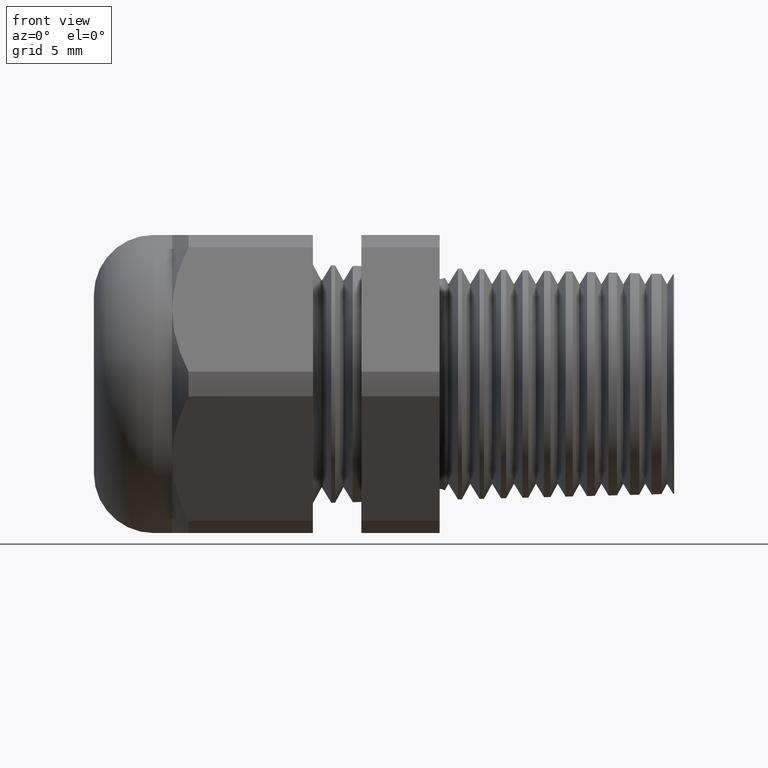
[diagram: clean part render]
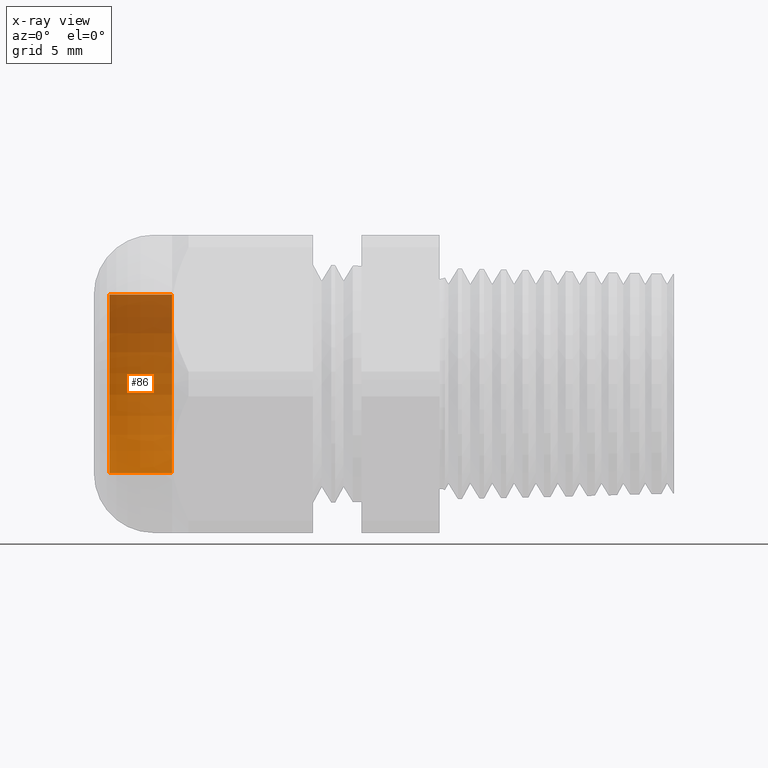
[diagram: x-ray — body ghosted, one internal face saturated and labeled with its STEP entity id]
A machine part, front view, then the same camera in x-ray: the body is ghosted and one INTERNAL B-rep face — a face not visible from any outside direction — is saturated and labeled: STEP entity #86.
In plain terms, the highlighted cylindrical surface (partial cylindrical patch) has radius 5.715 mm, axis along (1, 0, 0).
Its self-contained STEP definition (entity closure, byte-faithful):
#41 = EDGE_LOOP ( 'NONE', ( #87, #88, #91, #42 ) ) ;
#42 = ORIENTED_EDGE ( 'NONE', *, *, #43, .F. ) ;
#43 = EDGE_CURVE ( 'NONE', #118, #93, #1345, .T. ) ;
#86 = ADVANCED_FACE ( 'NONE', ( #1404 ), #1403, .T. ) ;
#87 = ORIENTED_EDGE ( 'NONE', *, *, #117, .T. ) ;
#88 = ORIENTED_EDGE ( 'NONE', *, *, #89, .T. ) ;
#89 = EDGE_CURVE ( 'NONE', #115, #90, #1464, .T. ) ;
#90 = VERTEX_POINT ( 'NONE', #1460 ) ;
#91 = ORIENTED_EDGE ( 'NONE', *, *, #92, .F. ) ;
#92 = EDGE_CURVE ( 'NONE', #93, #90, #1459, .T. ) ;
#93 = VERTEX_POINT ( 'NONE', #1454 ) ;
#115 = VERTEX_POINT ( 'NONE', #1478 ) ;
#117 = EDGE_CURVE ( 'NONE', #118, #115, #1477, .T. ) ;
#118 = VERTEX_POINT ( 'NONE', #1472 ) ;
#1342 = DIRECTION ( 'NONE',  ( 1.000000000000000000, 0.0000000000000000000, 0.0000000000000000000 ) ) ;
#1343 = VECTOR ( 'NONE', #1342, 39.37007874015748100 ) ;
#1344 = CARTESIAN_POINT ( 'NONE',  ( 0.0000000000000000000, 0.0000000000000000000, -0.2249999999999999800 ) ) ;
#1345 = LINE ( 'NONE', #1344, #1343 ) ;
#1399 = DIRECTION ( 'NONE',  ( 0.0000000000000000000, 0.0000000000000000000, -1.000000000000000000 ) ) ;
#1400 = DIRECTION ( 'NONE',  ( 1.000000000000000000, 0.0000000000000000000, 0.0000000000000000000 ) ) ;
#1401 = CARTESIAN_POINT ( 'NONE',  ( 0.0000000000000000000, 0.0000000000000000000, 0.0000000000000000000 ) ) ;
#1402 = AXIS2_PLACEMENT_3D ( 'NONE', #1401, #1400, #1399 ) ;
#1403 = CYLINDRICAL_SURFACE ( 'NONE', #1402, 0.2249999999999999800 ) ;
#1404 = FACE_OUTER_BOUND ( 'NONE', #41, .T. ) ;
#1454 = CARTESIAN_POINT ( 'NONE',  ( -0.9831496062992126600, 0.0000000000000000000, -0.2249999999999999800 ) ) ;
#1455 = DIRECTION ( 'NONE',  ( 0.0000000000000000000, 0.0000000000000000000, -1.000000000000000000 ) ) ;
#1456 = DIRECTION ( 'NONE',  ( 1.000000000000000000, 0.0000000000000000000, 0.0000000000000000000 ) ) ;
#1457 = CARTESIAN_POINT ( 'NONE',  ( -0.9831496062992126600, 0.0000000000000000000, 0.0000000000000000000 ) ) ;
#1458 = AXIS2_PLACEMENT_3D ( 'NONE', #1457, #1456, #1455 ) ;
#1459 = CIRCLE ( 'NONE', #1458, 0.2249999999999999800 ) ;
#1460 = CARTESIAN_POINT ( 'NONE',  ( -0.9831496062992126600, 2.755455298081544500E-017, 0.2249999999999999800 ) ) ;
#1461 = DIRECTION ( 'NONE',  ( 1.000000000000000000, 0.0000000000000000000, 0.0000000000000000000 ) ) ;
#1462 = VECTOR ( 'NONE', #1461, 39.37007874015748100 ) ;
#1463 = CARTESIAN_POINT ( 'NONE',  ( 0.0000000000000000000, 2.755455298081544500E-017, 0.2249999999999999800 ) ) ;
#1464 = LINE ( 'NONE', #1463, #1462 ) ;
#1472 = CARTESIAN_POINT ( 'NONE',  ( -1.141000000000000000, 0.0000000000000000000, -0.2249999999999999800 ) ) ;
#1473 = DIRECTION ( 'NONE',  ( 0.0000000000000000000, 0.0000000000000000000, -1.000000000000000000 ) ) ;
#1474 = DIRECTION ( 'NONE',  ( 1.000000000000000000, 0.0000000000000000000, 0.0000000000000000000 ) ) ;
#1475 = CARTESIAN_POINT ( 'NONE',  ( -1.141000000000000000, 0.0000000000000000000, 0.0000000000000000000 ) ) ;
#1476 = AXIS2_PLACEMENT_3D ( 'NONE', #1475, #1474, #1473 ) ;
#1477 = CIRCLE ( 'NONE', #1476, 0.2249999999999999800 ) ;
#1478 = CARTESIAN_POINT ( 'NONE',  ( -1.141000000000000000, 2.755455298081544500E-017, 0.2249999999999999800 ) ) ;